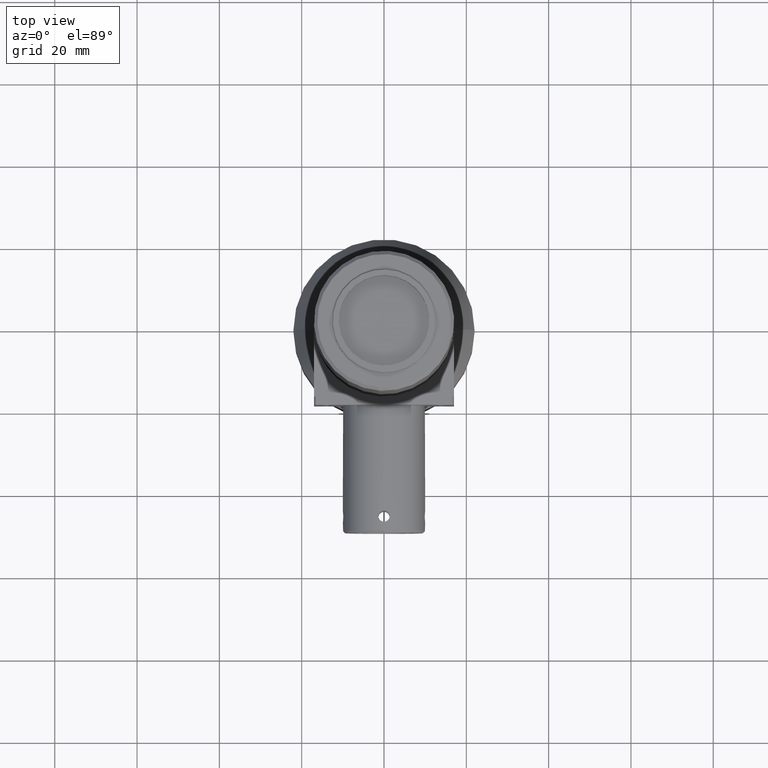
[diagram: clean part render]
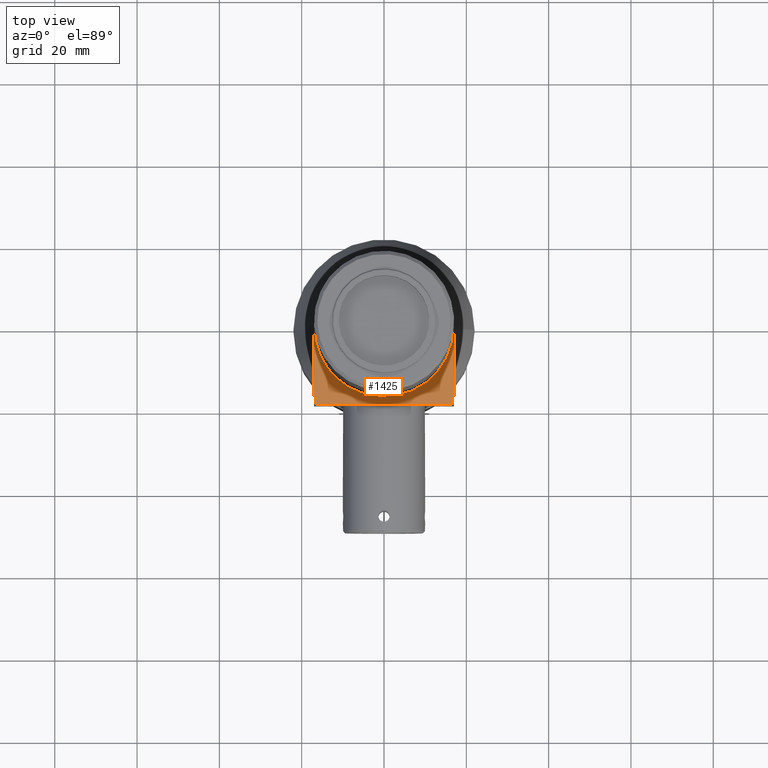
[diagram: same view with one face highlighted and labeled with its STEP entity id]
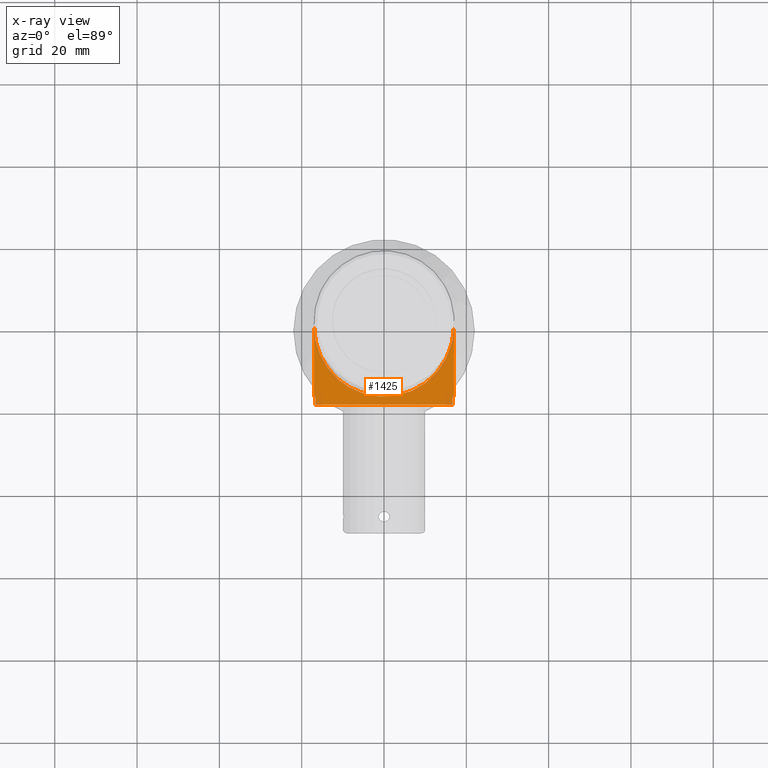
[diagram: x-ray of the same camera — body ghosted, the highlighted face saturated]
A machine part, top view. The second image highlights one B-rep face of the part: STEP entity #1425.
The next image is the same camera in x-ray: the body ghosted, the highlighted face saturated — about 0% of this face is hidden behind the body in this view.
In plain terms, the highlighted planar face has unit normal (-0, 0, -1).
Its self-contained STEP definition (entity closure, byte-faithful):
#197 = AXIS2_PLACEMENT_3D ( 'NONE', #2296, #4135, #2738 ) ;
#233 = CARTESIAN_POINT ( 'NONE',  ( -16.99999999999995000, -19.00000000000004300, 80.12130850271086000 ) ) ;
#605 = PLANE ( 'NONE',  #4415 ) ;
#625 = DIRECTION ( 'NONE',  ( -7.927686285214008400E-016, 6.540723362686794100E-016, -1.000000000000000000 ) ) ;
#637 = CARTESIAN_POINT ( 'NONE',  ( 17.00000000000005300, -17.00000000000004300, 80.12130850271081800 ) ) ;
#670 = DIRECTION ( 'NONE',  ( -7.935195319901151300E-016, 6.540723362686795100E-016, -1.000000000000000000 ) ) ;
#721 = ORIENTED_EDGE ( 'NONE', *, *, #5546, .F. ) ;
#832 = CARTESIAN_POINT ( 'NONE',  ( 17.00000000000005300, -4.523539501868533900E-014, 80.12130850271084600 ) ) ;
#898 = DIRECTION ( 'NONE',  ( -2.775557561562898100E-017, -1.000000000000000000, -6.540723362686804900E-016 ) ) ;
#979 = LINE ( 'NONE', #4044, #3499 ) ;
#1012 = CARTESIAN_POINT ( 'NONE',  ( 16.62077013859471800, -17.00000000000003900, 80.12130850271083200 ) ) ;
#1079 = DIRECTION ( 'NONE',  ( -1.000000000000000000, 2.775557561562899400E-017, 7.935195319901164100E-016 ) ) ;
#1214 = CIRCLE ( 'NONE', #2138, 16.99999999999999600 ) ;
#1218 = VERTEX_POINT ( 'NONE', #2679 ) ;
#1276 = VERTEX_POINT ( 'NONE', #4441 ) ;
#1312 = DIRECTION ( 'NONE',  ( -1.000000000000000000, 2.775557561562899400E-017, 7.935195319901164100E-016 ) ) ;
#1337 = ORIENTED_EDGE ( 'NONE', *, *, #4620, .F. ) ;
#1425 = ADVANCED_FACE ( 'NONE', ( #4541 ), #605, .F. ) ;
#1730 = ORIENTED_EDGE ( 'NONE', *, *, #3941, .F. ) ;
#1758 = CARTESIAN_POINT ( 'NONE',  ( -16.62077013859460800, -19.00000000000004300, 80.12130850271086000 ) ) ;
#1766 = VECTOR ( 'NONE', #898, 1000.000000000000000 ) ;
#1833 = VECTOR ( 'NONE', #5402, 1000.000000000000000 ) ;
#1839 = LINE ( 'NONE', #2320, #1766 ) ;
#1924 = VERTEX_POINT ( 'NONE', #3304 ) ;
#1995 = CARTESIAN_POINT ( 'NONE',  ( -16.99999999999995000, -19.00000000000004300, 80.12130850271086000 ) ) ;
#1999 = CARTESIAN_POINT ( 'NONE',  ( 5.549263439876817600E-014, -4.476355023321965400E-014, 80.12130850271084600 ) ) ;
#2003 = EDGE_CURVE ( 'NONE', #2263, #3610, #2059, .T. ) ;
#2059 = LINE ( 'NONE', #4101, #3734 ) ;
#2106 = LINE ( 'NONE', #233, #3913 ) ;
#2138 = AXIS2_PLACEMENT_3D ( 'NONE', #1999, #670, #3792 ) ;
#2261 = VERTEX_POINT ( 'NONE', #2639 ) ;
#2263 = VERTEX_POINT ( 'NONE', #1758 ) ;
#2290 = DIRECTION ( 'NONE',  ( 2.775557561561829800E-017, 1.000000000000000000, 6.540723362686794100E-016 ) ) ;
#2296 = CARTESIAN_POINT ( 'NONE',  ( 5.549263439876817600E-014, -4.476355023321965400E-014, 80.12130850271084600 ) ) ;
#2320 = CARTESIAN_POINT ( 'NONE',  ( -16.99999999999994300, -4.429170544775395600E-014, 80.12130850271087500 ) ) ;
#2477 = CARTESIAN_POINT ( 'NONE',  ( 17.00000000000005300, -4.523539501868533900E-014, 80.12130850271084600 ) ) ;
#2519 = ORIENTED_EDGE ( 'NONE', *, *, #3158, .F. ) ;
#2545 = LINE ( 'NONE', #637, #5495 ) ;
#2639 = CARTESIAN_POINT ( 'NONE',  ( -16.99999999999994300, -17.00000000000004300, 80.12130850271084600 ) ) ;
#2643 = VERTEX_POINT ( 'NONE', #1012 ) ;
#2676 = EDGE_CURVE ( 'NONE', #4679, #4704, #1214, .T. ) ;
#2679 = CARTESIAN_POINT ( 'NONE',  ( 17.00000000000005300, -17.00000000000004300, 80.12130850271081800 ) ) ;
#2738 = DIRECTION ( 'NONE',  ( 1.000000000000000000, -2.775557561562912900E-017, -8.163404592832035000E-016 ) ) ;
#3045 = EDGE_CURVE ( 'NONE', #1276, #2261, #1839, .T. ) ;
#3158 = EDGE_CURVE ( 'NONE', #1218, #2643, #2545, .T. ) ;
#3233 = LINE ( 'NONE', #832, #4587 ) ;
#3286 = DIRECTION ( 'NONE',  ( 2.775557561561829800E-017, 1.000000000000000000, 6.540723362686794100E-016 ) ) ;
#3304 = CARTESIAN_POINT ( 'NONE',  ( 16.62077013859471800, -19.00000000000004300, 80.12130850271083200 ) ) ;
#3374 = CARTESIAN_POINT ( 'NONE',  ( -8.551738191660916800, -14.69243934482251200, 80.12130850271084600 ) ) ;
#3459 = EDGE_CURVE ( 'NONE', #4704, #1276, #3989, .T. ) ;
#3463 = EDGE_CURVE ( 'NONE', #2643, #1924, #5283, .T. ) ;
#3499 = VECTOR ( 'NONE', #1312, 1000.000000000000000 ) ;
#3610 = VERTEX_POINT ( 'NONE', #5524 ) ;
#3611 = CARTESIAN_POINT ( 'NONE',  ( 16.62077013859471800, -16.50000000000004300, 80.12130850271083200 ) ) ;
#3683 = DIRECTION ( 'NONE',  ( -1.000000000000000000, 2.775557561561778000E-017, 7.927686285214008400E-016 ) ) ;
#3720 = ORIENTED_EDGE ( 'NONE', *, *, #2003, .F. ) ;
#3734 = VECTOR ( 'NONE', #2290, 1000.000000000000000 ) ;
#3792 = DIRECTION ( 'NONE',  ( 1.000000000000000000, -2.775557561562912900E-017, -8.163404592832035000E-016 ) ) ;
#3913 = VECTOR ( 'NONE', #3683, 1000.000000000000000 ) ;
#3941 = EDGE_CURVE ( 'NONE', #4679, #1218, #3233, .T. ) ;
#3989 = CIRCLE ( 'NONE', #197, 16.99999999999999600 ) ;
#4044 = CARTESIAN_POINT ( 'NONE',  ( 17.00000000000005300, -17.00000000000004300, 80.12130850271081800 ) ) ;
#4101 = CARTESIAN_POINT ( 'NONE',  ( -16.62077013859460800, -16.50000000000003900, 80.12130850271086000 ) ) ;
#4135 = DIRECTION ( 'NONE',  ( -7.935195319901151300E-016, 6.540723362686795100E-016, -1.000000000000000000 ) ) ;
#4279 = ORIENTED_EDGE ( 'NONE', *, *, #3459, .T. ) ;
#4415 = AXIS2_PLACEMENT_3D ( 'NONE', #1995, #625, #3286 ) ;
#4441 = CARTESIAN_POINT ( 'NONE',  ( -16.99999999999994300, -4.429170544775395600E-014, 80.12130850271087500 ) ) ;
#4541 = FACE_OUTER_BOUND ( 'NONE', #4649, .T. ) ;
#4587 = VECTOR ( 'NONE', #5661, 1000.000000000000000 ) ;
#4620 = EDGE_CURVE ( 'NONE', #1924, #2263, #2106, .T. ) ;
#4649 = EDGE_LOOP ( 'NONE', ( #4947, #2519, #1730, #4909, #4279, #5253, #721, #3720, #1337 ) ) ;
#4679 = VERTEX_POINT ( 'NONE', #2477 ) ;
#4704 = VERTEX_POINT ( 'NONE', #3374 ) ;
#4909 = ORIENTED_EDGE ( 'NONE', *, *, #2676, .T. ) ;
#4947 = ORIENTED_EDGE ( 'NONE', *, *, #3463, .F. ) ;
#5253 = ORIENTED_EDGE ( 'NONE', *, *, #3045, .T. ) ;
#5283 = LINE ( 'NONE', #3611, #1833 ) ;
#5402 = DIRECTION ( 'NONE',  ( -2.775557561561829800E-017, -1.000000000000000000, -6.540723362686794100E-016 ) ) ;
#5495 = VECTOR ( 'NONE', #1079, 1000.000000000000000 ) ;
#5524 = CARTESIAN_POINT ( 'NONE',  ( -16.62077013859460800, -17.00000000000003900, 80.12130850271086000 ) ) ;
#5546 = EDGE_CURVE ( 'NONE', #3610, #2261, #979, .T. ) ;
#5661 = DIRECTION ( 'NONE',  ( -2.775557561562898100E-017, -1.000000000000000000, -6.540723362686804900E-016 ) ) ;